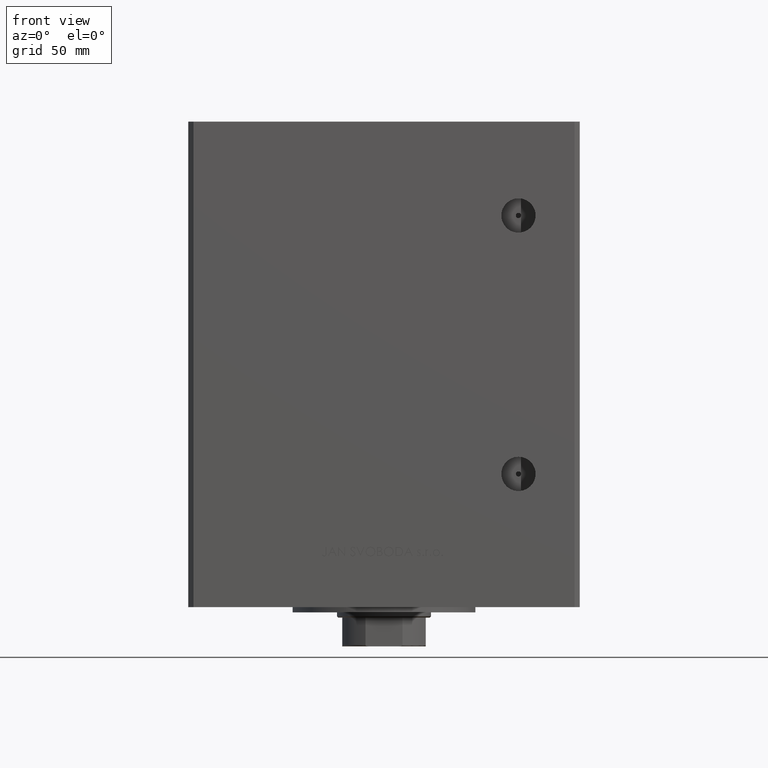
[diagram: clean part render]
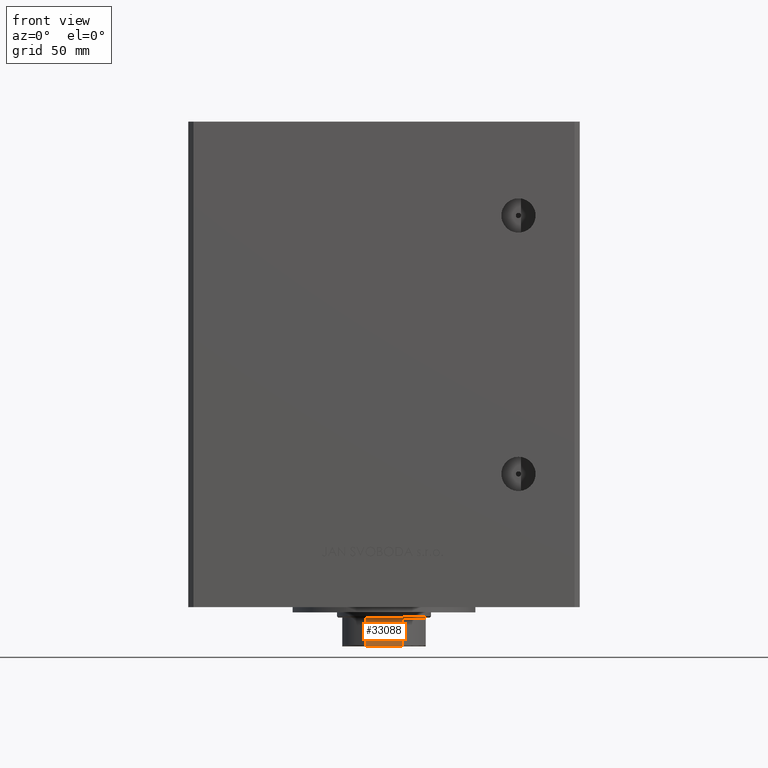
[diagram: same view with one face highlighted and labeled with its STEP entity id]
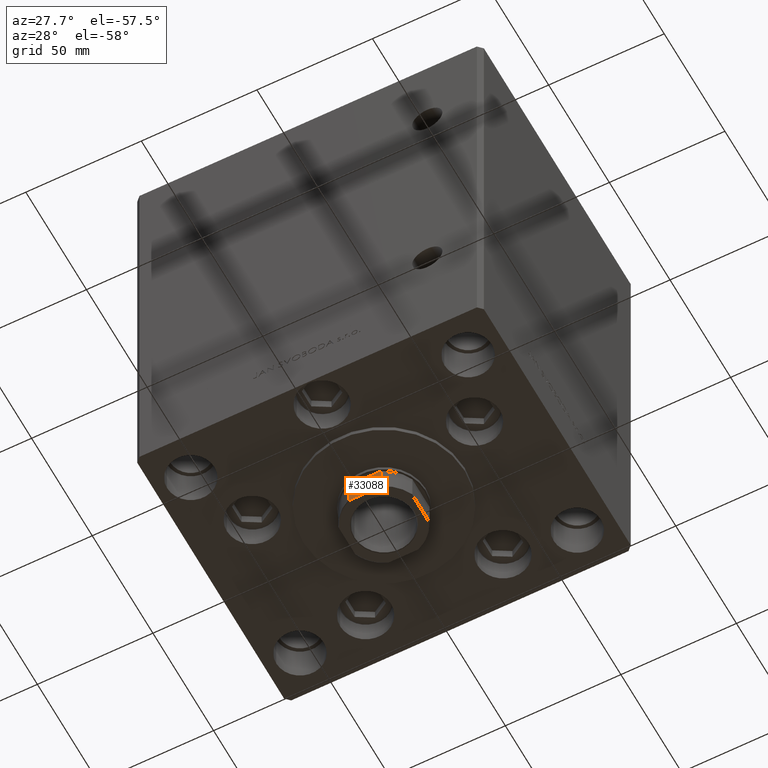
[diagram: same view with one face highlighted and labeled with its STEP entity id]
A machine part, front view. The second image highlights one B-rep face of the part: STEP entity #33088.
A second angle (auxiliary view) of the same face is appended — the face is thin or edge-on in the first view.
In plain terms, the highlighted planar face has unit normal (0, 1, 0).
Its self-contained STEP definition (entity closure, byte-faithful):
#248 = CARTESIAN_POINT ( 'NONE',  ( 6.914772706552263060, -16.00000000000000000, 167.2576711345670901 ) ) ;
#482 = VERTEX_POINT ( 'NONE', #18456 ) ;
#512 = DIRECTION ( 'NONE',  ( 1.000000000000000000, 1.084202172485504434E-16, 0.000000000000000000 ) ) ;
#1060 = VERTEX_POINT ( 'NONE', #22338 ) ;
#1269 = CARTESIAN_POINT ( 'NONE',  ( -6.967626683430006018, -16.00000000000000000, 167.2212986014228306 ) ) ;
#1435 = PLANE ( 'NONE',  #18033 ) ;
#2644 = CARTESIAN_POINT ( 'NONE',  ( -7.088723439378916247, -16.00000000000000000, 156.5000000000000284 ) ) ;
#3311 = CARTESIAN_POINT ( 'NONE',  ( 6.746962372739932157, -16.00000000000000000, 167.3511068297690372 ) ) ;
#3336 = EDGE_CURVE ( 'NONE', #25876, #27348, #4326, .T. ) ;
#4066 = CARTESIAN_POINT ( 'NONE',  ( 6.968475375953127049, -15.99999999999999645, 167.2205009019614863 ) ) ;
#4326 = LINE ( 'NONE', #16778, #45517 ) ;
#4659 = ORIENTED_EDGE ( 'NONE', *, *, #3336, .T. ) ;
#4710 = CARTESIAN_POINT ( 'NONE',  ( 7.088723439378916247, -16.00000000000000000, -0.001000000000001000089 ) ) ;
#4815 = CARTESIAN_POINT ( 'NONE',  ( -7.088723439378916247, -16.00000000000000000, -0.001000000000001000089 ) ) ;
#8397 = ORIENTED_EDGE ( 'NONE', *, *, #10428, .T. ) ;
#8645 = LINE ( 'NONE', #4815, #28797 ) ;
#8650 = EDGE_CURVE ( 'NONE', #27348, #1060, #31930, .T. ) ;
#10428 = EDGE_CURVE ( 'NONE', #482, #16782, #12694, .T. ) ;
#11447 = CARTESIAN_POINT ( 'NONE',  ( 7.088723439378916247, -16.00000000000000000, 167.0000000000000000 ) ) ;
#11896 = EDGE_LOOP ( 'NONE', ( #39468, #8397, #46681, #4659, #43257, #39705 ) ) ;
#12694 = B_SPLINE_CURVE_WITH_KNOTS ( 'NONE', 3,
 ( #49935, #30615, #39916, #27043, #47801, #34690, #1269, #24161, #38758, #46134 ),
 .UNSPECIFIED., .F., .F.,
 ( 4, 2, 2, 2, 4 ),
 ( 0.000000000000000000, 0.0007561879621635630858, 0.001134281943245333841, 0.001323328933786239656, 0.001512375924327145904 ),
 .UNSPECIFIED. ) ;
#14769 = CARTESIAN_POINT ( 'NONE',  ( 5.999773414835122942, -16.00000000000000355, 167.5000000000000568 ) ) ;
#15282 = CARTESIAN_POINT ( 'NONE',  ( 5.744562646538024175, -16.00000000000000355, 167.5000000000000000 ) ) ;
#15689 = VERTEX_POINT ( 'NONE', #15282 ) ;
#16778 = CARTESIAN_POINT ( 'NONE',  ( -15.99999999999999645, -16.00000000000000355, 156.5000000000000000 ) ) ;
#16782 = VERTEX_POINT ( 'NONE', #36350 ) ;
#16951 = CARTESIAN_POINT ( 'NONE',  ( -15.99999999999999645, -16.00000000000000355, 167.5000000000000000 ) ) ;
#18033 = AXIS2_PLACEMENT_3D ( 'NONE', #16951, #35524, #47220 ) ;
#18456 = CARTESIAN_POINT ( 'NONE',  ( -5.744562646538029504, -16.00000000000000355, 167.5000000000000000 ) ) ;
#19089 = CARTESIAN_POINT ( 'NONE',  ( 6.252433022027807930, -16.00000000000000000, 167.4806157152108597 ) ) ;
#21078 = DIRECTION ( 'NONE',  ( -0.000000000000000000, -0.000000000000000000, 1.000000000000000000 ) ) ;
#21296 = VECTOR ( 'NONE', #23606, 1000.000000000000000 ) ;
#22338 = CARTESIAN_POINT ( 'NONE',  ( 7.088723439378916247, -16.00000000000000000, 167.0000000000000000 ) ) ;
#23124 = CARTESIAN_POINT ( 'NONE',  ( -15.99999999999999645, -16.00000000000000355, 167.5000000000000000 ) ) ;
#23606 = DIRECTION ( 'NONE',  ( 1.000000000000000000, 1.084202172485504434E-16, 0.000000000000000000 ) ) ;
#24161 = CARTESIAN_POINT ( 'NONE',  ( -7.055793701721071898, -15.99999999999999645, 167.1256279161197824 ) ) ;
#25876 = VERTEX_POINT ( 'NONE', #2644 ) ;
#27043 = CARTESIAN_POINT ( 'NONE',  ( -6.620608993398001019, -16.00000000000000355, 167.3919184437073113 ) ) ;
#27348 = VERTEX_POINT ( 'NONE', #34323 ) ;
#28797 = VECTOR ( 'NONE', #21078, 1000.000000000000000 ) ;
#29029 = EDGE_CURVE ( 'NONE', #482, #15689, #30995, .T. ) ;
#30615 = CARTESIAN_POINT ( 'NONE',  ( -5.999698100839998993, -16.00000000000000355, 167.5000000000000000 ) ) ;
#30995 = LINE ( 'NONE', #23124, #21296 ) ;
#31269 = CARTESIAN_POINT ( 'NONE',  ( 6.623467753754347598, -16.00000000000000000, 167.3910978819201887 ) ) ;
#31360 = B_SPLINE_CURVE_WITH_KNOTS ( 'NONE', 3,
 ( #11447, #38905, #49586, #4066, #248, #3311, #31269, #19089, #14769, #46789 ),
 .UNSPECIFIED., .F., .F.,
 ( 4, 2, 2, 2, 4 ),
 ( 0.000000000000000000, 0.0001928955851489301532, 0.0003857911702978603064, 0.0007715823405957613788, 0.001543164681191583039 ),
 .UNSPECIFIED. ) ;
#31607 = EDGE_CURVE ( 'NONE', #1060, #15689, #31360, .T. ) ;
#31930 = LINE ( 'NONE', #4710, #39857 ) ;
#33088 = ADVANCED_FACE ( 'NONE', ( #36271 ), #1435, .F. ) ;
#34323 = CARTESIAN_POINT ( 'NONE',  ( 7.088723439378916247, -16.00000000000000000, 156.5000000000000284 ) ) ;
#34690 = CARTESIAN_POINT ( 'NONE',  ( -6.914158745692617458, -16.00000000000000355, 167.2581288012990228 ) ) ;
#35524 = DIRECTION ( 'NONE',  ( -1.084202172485504557E-16, 1.000000000000000000, 0.000000000000000000 ) ) ;
#36271 = FACE_OUTER_BOUND ( 'NONE', #11896, .T. ) ;
#36350 = CARTESIAN_POINT ( 'NONE',  ( -7.088723439378916247, -16.00000000000000000, 167.0000000000000000 ) ) ;
#38758 = CARTESIAN_POINT ( 'NONE',  ( -7.088723439378916247, -16.00000000000000711, 167.0655697653147342 ) ) ;
#38905 = CARTESIAN_POINT ( 'NONE',  ( 7.088723439378915359, -15.99999999999999645, 167.0653596029795835 ) ) ;
#39309 = DIRECTION ( 'NONE',  ( -0.000000000000000000, -0.000000000000000000, 1.000000000000000000 ) ) ;
#39468 = ORIENTED_EDGE ( 'NONE', *, *, #29029, .F. ) ;
#39705 = ORIENTED_EDGE ( 'NONE', *, *, #31607, .T. ) ;
#39857 = VECTOR ( 'NONE', #39309, 1000.000000000000000 ) ;
#39885 = EDGE_CURVE ( 'NONE', #25876, #16782, #8645, .T. ) ;
#39916 = CARTESIAN_POINT ( 'NONE',  ( -6.251780714621276047, -16.00000000000000355, 167.4805079891187347 ) ) ;
#43257 = ORIENTED_EDGE ( 'NONE', *, *, #8650, .T. ) ;
#45517 = VECTOR ( 'NONE', #512, 1000.000000000000000 ) ;
#46134 = CARTESIAN_POINT ( 'NONE',  ( -7.088723439378916247, -16.00000000000000000, 167.0000000000000000 ) ) ;
#46681 = ORIENTED_EDGE ( 'NONE', *, *, #39885, .F. ) ;
#46789 = CARTESIAN_POINT ( 'NONE',  ( 5.744562646538024175, -16.00000000000000355, 167.5000000000000000 ) ) ;
#47220 = DIRECTION ( 'NONE',  ( -1.000000000000000000, -1.084202172485504557E-16, 0.000000000000000000 ) ) ;
#47801 = CARTESIAN_POINT ( 'NONE',  ( -6.744478600285194858, -16.00000000000000355, 167.3522542963852970 ) ) ;
#49586 = CARTESIAN_POINT ( 'NONE',  ( 7.055665994487712034, -16.00000000000000000, 167.1256422470903829 ) ) ;
#49935 = CARTESIAN_POINT ( 'NONE',  ( -5.744562646538029504, -16.00000000000000355, 167.5000000000000000 ) ) ;